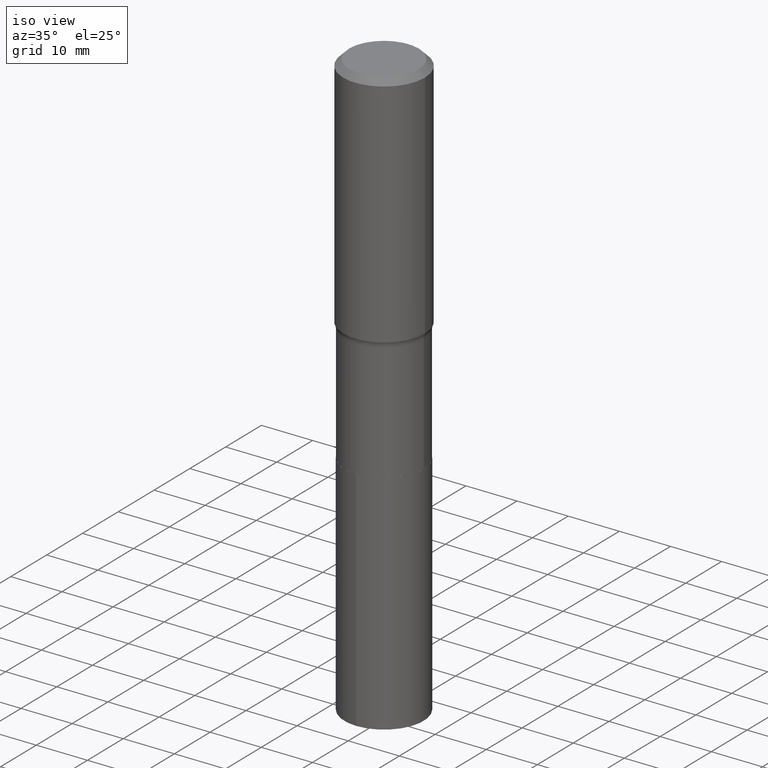
[diagram: clean part render]
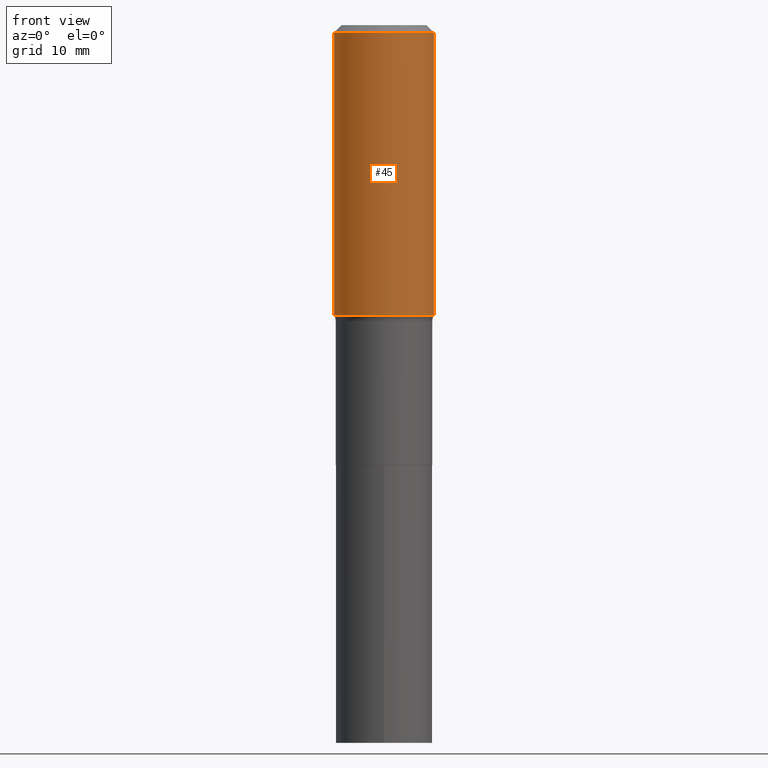
[diagram: tour spotlight — one face highlighted and labeled with its STEP entity id]
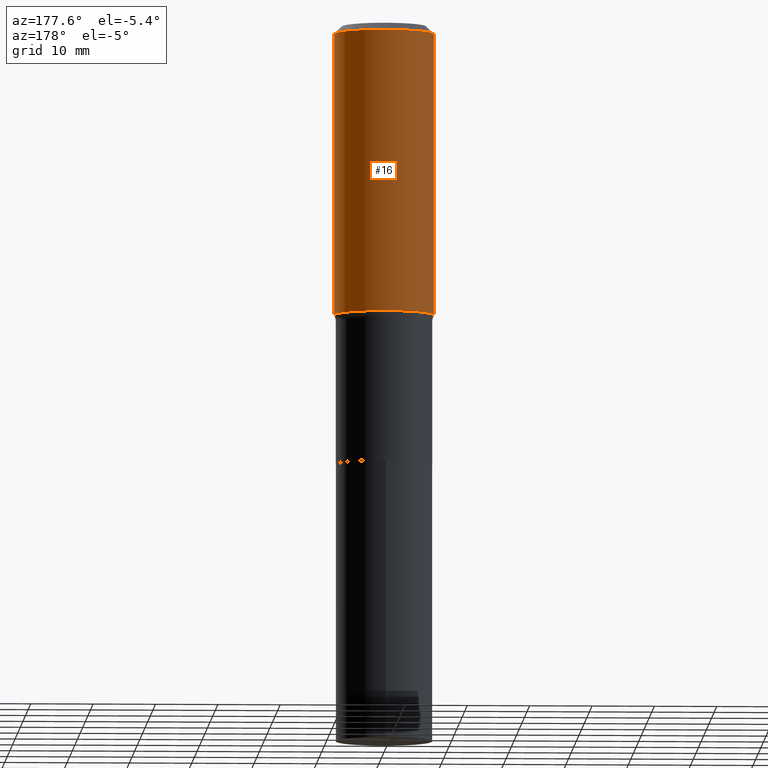
[diagram: tour spotlight — one face highlighted and labeled with its STEP entity id]
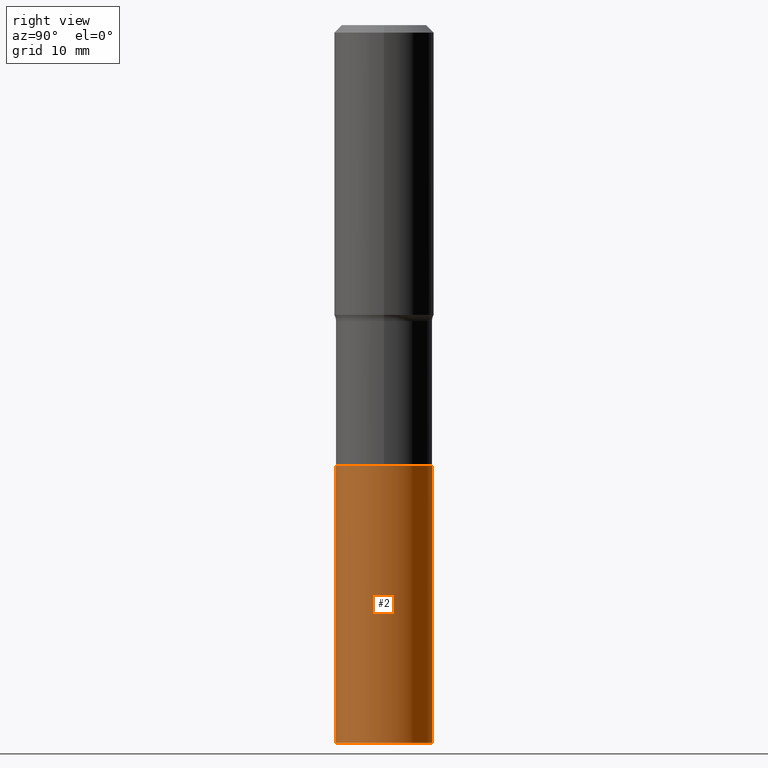
[diagram: tour spotlight — one face highlighted and labeled with its STEP entity id]
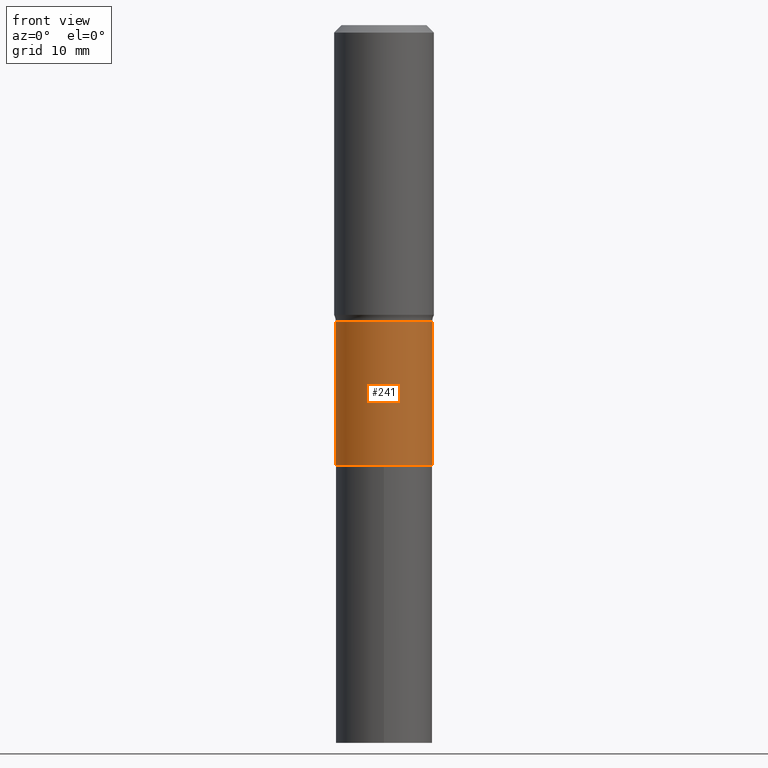
[diagram: tour spotlight — one face highlighted and labeled with its STEP entity id]
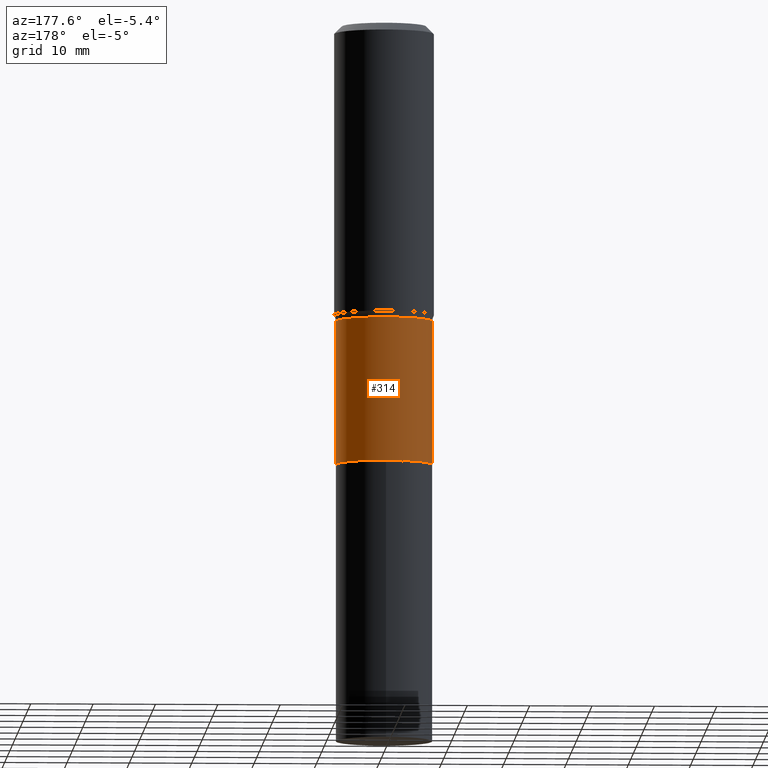
[diagram: tour spotlight — one face highlighted and labeled with its STEP entity id]
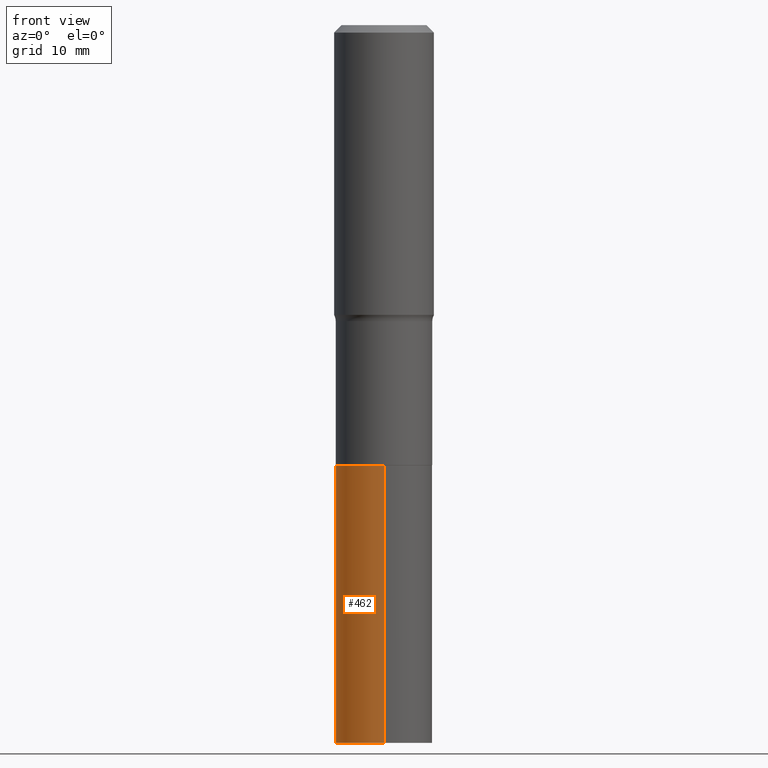
[diagram: tour spotlight — one face highlighted and labeled with its STEP entity id]
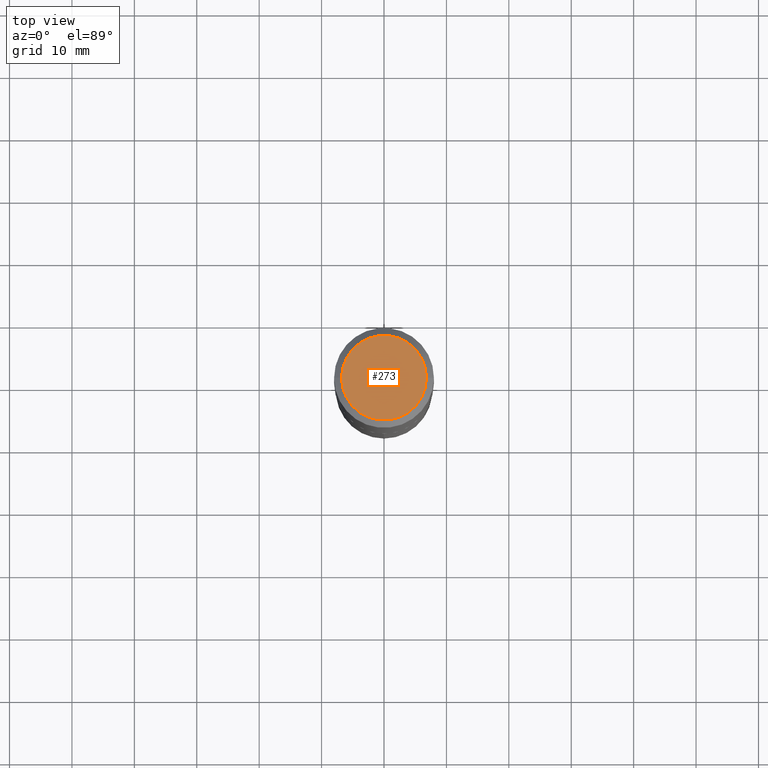
[diagram: tour spotlight — one face highlighted and labeled with its STEP entity id]
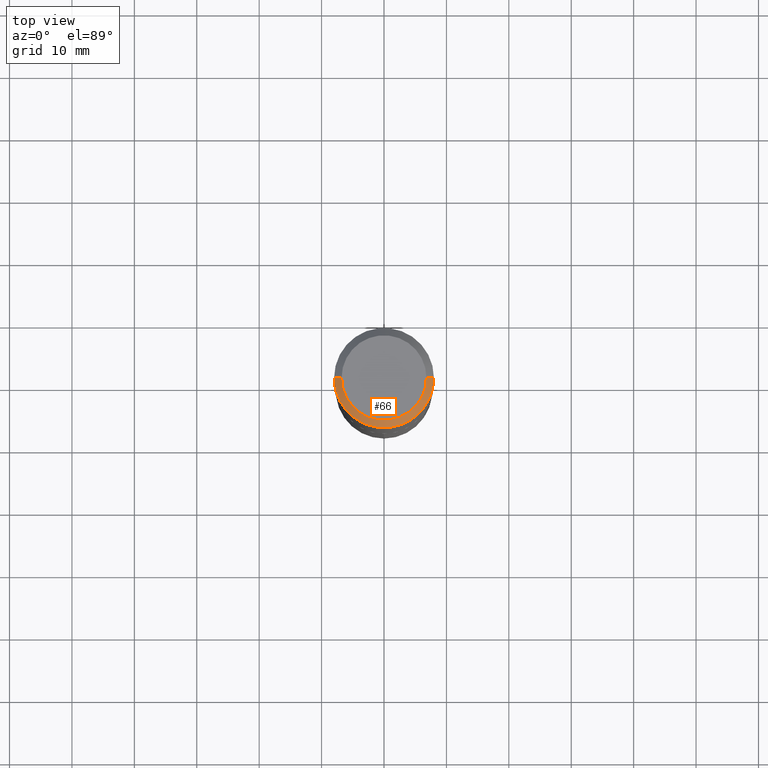
[diagram: tour spotlight — one face highlighted and labeled with its STEP entity id]
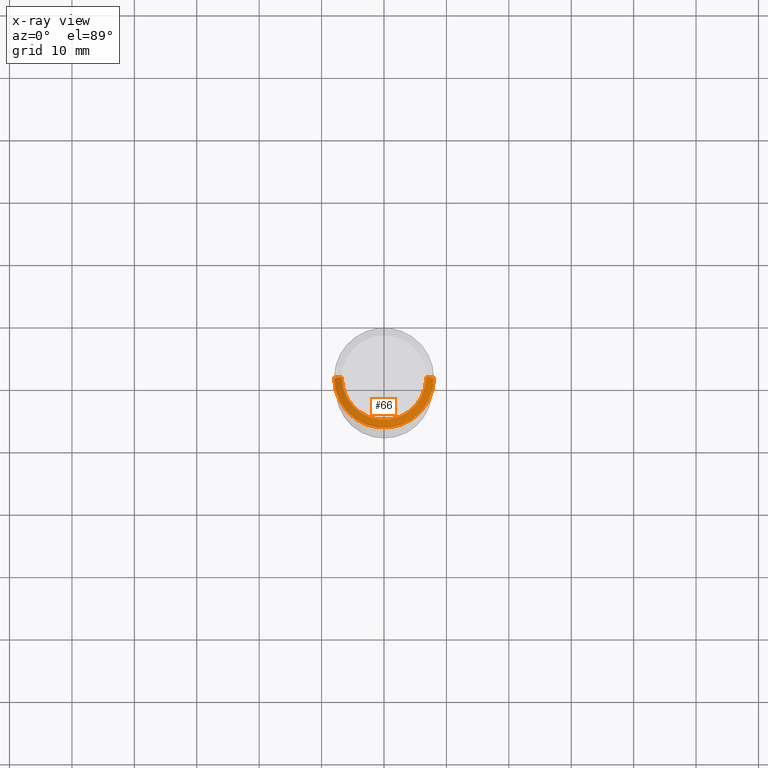
[diagram: x-ray of the same camera — body ghosted, this tour face saturated]
A machine part: a face-by-face anatomy tour. The part has 16 B-rep faces; the first image is the clean iso view, then the 8 largest visible faces are spotlighted one at a time (largest first), each with its STEP entity span.

Face 1 — front view, entity #45. In plain terms, the highlighted cylindrical surface (partial cylindrical patch) has radius 7.9997 mm, axis along (-0, 0, 1).
Definition (entity closure, byte-faithful):
#11 = ORIENTED_EDGE ( 'NONE', *, *, #383, .F. ) ;
#14 = DIRECTION ( 'NONE',  ( -2.445468806185136597E-29, 3.491481338843145583E-15, 1.000000000000000000 ) ) ;
#21 = FACE_OUTER_BOUND ( 'NONE', #113, .T. ) ;
#30 = CIRCLE ( 'NONE', #97, 0.3149500000000001743 ) ;
#34 = LINE ( 'NONE', #140, #139 ) ;
#45 = ADVANCED_FACE ( 'NONE', ( #21 ), #115, .T. ) ;
#55 = ORIENTED_EDGE ( 'NONE', *, *, #147, .F. ) ;
#67 = VERTEX_POINT ( 'NONE', #117 ) ;
#81 = AXIS2_PLACEMENT_3D ( 'NONE', #154, #152, #448 ) ;
#97 = AXIS2_PLACEMENT_3D ( 'NONE', #110, #216, #400 ) ;
#110 = CARTESIAN_POINT ( 'NONE',  ( 4.470370097151335704E-29, -6.382503727894485274E-15, -1.828021721579425440 ) ) ;
#113 = EDGE_LOOP ( 'NONE', ( #11, #125, #353, #55 ) ) ;
#115 = CYLINDRICAL_SURFACE ( 'NONE', #81, 0.3149500000000000632 ) ;
#117 = CARTESIAN_POINT ( 'NONE',  ( 0.3149500000000000077, -2.364230402487588149E-15, -0.04724250000000029120 ) ) ;
#125 = ORIENTED_EDGE ( 'NONE', *, *, #399, .T. ) ;
#139 = VECTOR ( 'NONE', #184, 39.37007874015748143 ) ;
#140 = CARTESIAN_POINT ( 'NONE',  ( -0.3149500000000000632, 2.237854346276435985E-15, -1.549218606675782956E-29 ) ) ;
#144 = CIRCLE ( 'NONE', #309, 0.3149500000000000077 ) ;
#147 = EDGE_CURVE ( 'NONE', #296, #67, #144, .T. ) ;
#152 = DIRECTION ( 'NONE',  ( -2.445468806185136597E-29, 3.491481338843145583E-15, 1.000000000000000000 ) ) ;
#154 = CARTESIAN_POINT ( 'NONE',  ( 0.000000000000000000, 0.000000000000000000, 0.000000000000000000 ) ) ;
#162 = VERTEX_POINT ( 'NONE', #394 ) ;
#172 = CARTESIAN_POINT ( 'NONE',  ( 0.3149500000000000632, -2.199284095337290265E-15, 1.535751875536930410E-29 ) ) ;
#179 = DIRECTION ( 'NONE',  ( -2.445468806185136877E-29, 3.491481338843145188E-15, 1.000000000000000000 ) ) ;
#184 = DIRECTION ( 'NONE',  ( -2.445468806185136877E-29, 3.491481338843145188E-15, 1.000000000000000000 ) ) ;
#187 = CARTESIAN_POINT ( 'NONE',  ( 1.155300600762020273E-30, -1.649463071502983032E-16, -0.04724250000000029120 ) ) ;
#216 = DIRECTION ( 'NONE',  ( -2.445468806185136597E-29, 3.491481338843145583E-15, 1.000000000000000000 ) ) ;
#233 = VERTEX_POINT ( 'NONE', #456 ) ;
#295 = CARTESIAN_POINT ( 'NONE',  ( -0.3149500000000000077, -1.035870671245955397E-15, -0.04724250000000029120 ) ) ;
#296 = VERTEX_POINT ( 'NONE', #295 ) ;
#309 = AXIS2_PLACEMENT_3D ( 'NONE', #187, #14, #428 ) ;
#325 = VECTOR ( 'NONE', #179, 39.37007874015748143 ) ;
#353 = ORIENTED_EDGE ( 'NONE', *, *, #407, .T. ) ;
#383 = EDGE_CURVE ( 'NONE', #233, #296, #34, .T. ) ;
#394 = CARTESIAN_POINT ( 'NONE',  ( 0.3149500000000001743, -8.581787823231775145E-15, -1.828021721579425440 ) ) ;
#399 = EDGE_CURVE ( 'NONE', #233, #162, #30, .T. ) ;
#400 = DIRECTION ( 'NONE',  ( 1.000000000000000000, -6.982962677686265922E-15, 0.000000000000000000 ) ) ;
#407 = EDGE_CURVE ( 'NONE', #162, #67, #435, .T. ) ;
#428 = DIRECTION ( 'NONE',  ( 1.000000000000000000, -6.982962677686266711E-15, 0.000000000000000000 ) ) ;
#435 = LINE ( 'NONE', #172, #325 ) ;
#448 = DIRECTION ( 'NONE',  ( 1.000000000000000000, -6.982962677686266711E-15, 4.876176775795936353E-29 ) ) ;
#456 = CARTESIAN_POINT ( 'NONE',  ( -0.3149500000000001743, -4.144649381618048500E-15, -1.828021721579425440 ) ) ;

Face 2 — auxiliary view, entity #16. In plain terms, the highlighted cylindrical surface (partial cylindrical patch) has radius 7.9997 mm, axis along (-0, 0, 1).
Definition (entity closure, byte-faithful):
#3 = CARTESIAN_POINT ( 'NONE',  ( 1.155300600762020273E-30, -1.649463071502983032E-16, -0.04724250000000029120 ) ) ;
#16 = ADVANCED_FACE ( 'NONE', ( #119 ), #304, .T. ) ;
#22 = DIRECTION ( 'NONE',  ( -2.445468806185136597E-29, 3.491481338843145583E-15, 1.000000000000000000 ) ) ;
#34 = LINE ( 'NONE', #140, #139 ) ;
#36 = DIRECTION ( 'NONE',  ( -2.445468806185136597E-29, 3.491481338843145583E-15, 1.000000000000000000 ) ) ;
#67 = VERTEX_POINT ( 'NONE', #117 ) ;
#88 = CARTESIAN_POINT ( 'NONE',  ( 0.000000000000000000, 0.000000000000000000, 0.000000000000000000 ) ) ;
#117 = CARTESIAN_POINT ( 'NONE',  ( 0.3149500000000000077, -2.364230402487588149E-15, -0.04724250000000029120 ) ) ;
#119 = FACE_OUTER_BOUND ( 'NONE', #128, .T. ) ;
#120 = DIRECTION ( 'NONE',  ( -2.445468806185136597E-29, 3.491481338843145583E-15, 1.000000000000000000 ) ) ;
#123 = EDGE_CURVE ( 'NONE', #162, #233, #200, .T. ) ;
#128 = EDGE_LOOP ( 'NONE', ( #244, #161, #460, #191 ) ) ;
#139 = VECTOR ( 'NONE', #184, 39.37007874015748143 ) ;
#140 = CARTESIAN_POINT ( 'NONE',  ( -0.3149500000000000632, 2.237854346276435985E-15, -1.549218606675782956E-29 ) ) ;
#158 = DIRECTION ( 'NONE',  ( 1.000000000000000000, -6.982962677686265922E-15, 0.000000000000000000 ) ) ;
#161 = ORIENTED_EDGE ( 'NONE', *, *, #383, .T. ) ;
#162 = VERTEX_POINT ( 'NONE', #394 ) ;
#172 = CARTESIAN_POINT ( 'NONE',  ( 0.3149500000000000632, -2.199284095337290265E-15, 1.535751875536930410E-29 ) ) ;
#179 = DIRECTION ( 'NONE',  ( -2.445468806185136877E-29, 3.491481338843145188E-15, 1.000000000000000000 ) ) ;
#184 = DIRECTION ( 'NONE',  ( -2.445468806185136877E-29, 3.491481338843145188E-15, 1.000000000000000000 ) ) ;
#191 = ORIENTED_EDGE ( 'NONE', *, *, #407, .F. ) ;
#200 = CIRCLE ( 'NONE', #290, 0.3149500000000001743 ) ;
#220 = DIRECTION ( 'NONE',  ( 1.000000000000000000, -6.982962677686266711E-15, 0.000000000000000000 ) ) ;
#233 = VERTEX_POINT ( 'NONE', #456 ) ;
#240 = CIRCLE ( 'NONE', #286, 0.3149500000000000077 ) ;
#244 = ORIENTED_EDGE ( 'NONE', *, *, #123, .T. ) ;
#283 = AXIS2_PLACEMENT_3D ( 'NONE', #88, #22, #406 ) ;
#286 = AXIS2_PLACEMENT_3D ( 'NONE', #3, #36, #220 ) ;
#290 = AXIS2_PLACEMENT_3D ( 'NONE', #453, #120, #158 ) ;
#295 = CARTESIAN_POINT ( 'NONE',  ( -0.3149500000000000077, -1.035870671245955397E-15, -0.04724250000000029120 ) ) ;
#296 = VERTEX_POINT ( 'NONE', #295 ) ;
#304 = CYLINDRICAL_SURFACE ( 'NONE', #283, 0.3149500000000000632 ) ;
#311 = EDGE_CURVE ( 'NONE', #67, #296, #240, .T. ) ;
#325 = VECTOR ( 'NONE', #179, 39.37007874015748143 ) ;
#383 = EDGE_CURVE ( 'NONE', #233, #296, #34, .T. ) ;
#394 = CARTESIAN_POINT ( 'NONE',  ( 0.3149500000000001743, -8.581787823231775145E-15, -1.828021721579425440 ) ) ;
#406 = DIRECTION ( 'NONE',  ( 1.000000000000000000, -6.982962677686266711E-15, 4.876176775795936353E-29 ) ) ;
#407 = EDGE_CURVE ( 'NONE', #162, #67, #435, .T. ) ;
#435 = LINE ( 'NONE', #172, #325 ) ;
#453 = CARTESIAN_POINT ( 'NONE',  ( 4.470370097151335704E-29, -6.382503727894485274E-15, -1.828021721579425440 ) ) ;
#456 = CARTESIAN_POINT ( 'NONE',  ( -0.3149500000000001743, -4.144649381618048500E-15, -1.828021721579425440 ) ) ;
#460 = ORIENTED_EDGE ( 'NONE', *, *, #311, .F. ) ;

Face 3 — right view, entity #2. In plain terms, the highlighted cylindrical surface (partial cylindrical patch) has radius 7.7394 mm, axis along (-0, 0, 1).
Definition (entity closure, byte-faithful):
#1 = AXIS2_PLACEMENT_3D ( 'NONE', #260, #338, #149 ) ;
#2 = ADVANCED_FACE ( 'NONE', ( #265 ), #226, .T. ) ;
#17 = EDGE_LOOP ( 'NONE', ( #438, #347, #238, #269 ) ) ;
#20 = VECTOR ( 'NONE', #346, 39.37007874015748143 ) ;
#41 = LINE ( 'NONE', #106, #305 ) ;
#51 = EDGE_CURVE ( 'NONE', #64, #212, #145, .T. ) ;
#62 = CARTESIAN_POINT ( 'NONE',  ( 2.165023715861136289E-15, 0.3046999999999903119, -2.775600000000000733 ) ) ;
#64 = VERTEX_POINT ( 'NONE', #90 ) ;
#77 = AXIS2_PLACEMENT_3D ( 'NONE', #326, #281, #322 ) ;
#90 = CARTESIAN_POINT ( 'NONE',  ( -2.127708727890894629E-15, -0.3047000000000158471, -4.527599999999999625 ) ) ;
#106 = CARTESIAN_POINT ( 'NONE',  ( -2.127708727890937622E-15, -0.3047000000000097408, -2.775599999999998513 ) ) ;
#118 = CIRCLE ( 'NONE', #77, 0.3047000000000000264 ) ;
#145 = CIRCLE ( 'NONE', #395, 0.3047000000000000264 ) ;
#149 = DIRECTION ( 'NONE',  ( -6.982962677686265922E-15, -1.000000000000000000, 3.586278954596997549E-15 ) ) ;
#207 = VERTEX_POINT ( 'NONE', #242 ) ;
#212 = VERTEX_POINT ( 'NONE', #417 ) ;
#226 = CYLINDRICAL_SURFACE ( 'NONE', #1, 0.3047000000000000264 ) ;
#238 = ORIENTED_EDGE ( 'NONE', *, *, #416, .F. ) ;
#242 = CARTESIAN_POINT ( 'NONE',  ( -2.127708727890937622E-15, -0.3047000000000097408, -2.775599999999998513 ) ) ;
#260 = CARTESIAN_POINT ( 'NONE',  ( 6.787643218447464969E-29, -9.690955604093032420E-15, -2.775599999999999845 ) ) ;
#261 = EDGE_CURVE ( 'NONE', #212, #277, #419, .T. ) ;
#265 = FACE_OUTER_BOUND ( 'NONE', #17, .T. ) ;
#269 = ORIENTED_EDGE ( 'NONE', *, *, #364, .F. ) ;
#277 = VERTEX_POINT ( 'NONE', #62 ) ;
#281 = DIRECTION ( 'NONE',  ( -2.445278473836501183E-29, 3.491753905599435756E-15, 1.000000000000000000 ) ) ;
#287 = DIRECTION ( 'NONE',  ( -2.445278473836501183E-29, 3.491753905599435756E-15, 1.000000000000000000 ) ) ;
#305 = VECTOR ( 'NONE', #287, 39.37007874015748143 ) ;
#322 = DIRECTION ( 'NONE',  ( -6.982962677686265922E-15, -1.000000000000000000, 3.586278954596997549E-15 ) ) ;
#326 = CARTESIAN_POINT ( 'NONE',  ( 6.787643218447464969E-29, -9.690955604093032420E-15, -2.775599999999999845 ) ) ;
#338 = DIRECTION ( 'NONE',  ( -2.445278473836501183E-29, 3.491753905599435756E-15, 1.000000000000000000 ) ) ;
#346 = DIRECTION ( 'NONE',  ( -2.445278473836501183E-29, 3.491753905599435756E-15, 1.000000000000000000 ) ) ;
#347 = ORIENTED_EDGE ( 'NONE', *, *, #261, .T. ) ;
#364 = EDGE_CURVE ( 'NONE', #64, #207, #41, .T. ) ;
#378 = DIRECTION ( 'NONE',  ( -6.982962677686265922E-15, -1.000000000000000000, 3.586278954596997549E-15 ) ) ;
#395 = AXIS2_PLACEMENT_3D ( 'NONE', #409, #445, #378 ) ;
#409 = CARTESIAN_POINT ( 'NONE',  ( 1.107177110460901568E-28, -1.580850844670324897E-14, -4.527600000000000513 ) ) ;
#416 = EDGE_CURVE ( 'NONE', #207, #277, #118, .T. ) ;
#417 = CARTESIAN_POINT ( 'NONE',  ( 2.165023715861114595E-15, 0.3046999999999842057, -4.527600000000001401 ) ) ;
#419 = LINE ( 'NONE', #420, #20 ) ;
#420 = CARTESIAN_POINT ( 'NONE',  ( 2.165023715861093296E-15, 0.3046999999999903119, -2.775600000000000733 ) ) ;
#438 = ORIENTED_EDGE ( 'NONE', *, *, #51, .T. ) ;
#445 = DIRECTION ( 'NONE',  ( -2.445278473836501183E-29, 3.491753905599435756E-15, 1.000000000000000000 ) ) ;

Face 4 — front view, entity #241. In plain terms, the highlighted cylindrical surface (partial cylindrical patch) has radius 7.7394 mm, axis along (-0, 0, 1).
Definition (entity closure, byte-faithful):
#7 = ORIENTED_EDGE ( 'NONE', *, *, #32, .F. ) ;
#27 = CYLINDRICAL_SURFACE ( 'NONE', #424, 0.3046999999999999709 ) ;
#32 = EDGE_CURVE ( 'NONE', #134, #194, #415, .T. ) ;
#39 = DIRECTION ( 'NONE',  ( -2.445468806185136597E-29, 3.491481338843145583E-15, 1.000000000000000000 ) ) ;
#56 = LINE ( 'NONE', #390, #380 ) ;
#78 = DIRECTION ( 'NONE',  ( -2.445468806185136597E-29, 3.491481338843145583E-15, 1.000000000000000000 ) ) ;
#96 = ORIENTED_EDGE ( 'NONE', *, *, #249, .T. ) ;
#109 = DIRECTION ( 'NONE',  ( 1.000000000000000000, -6.982962677686267499E-15, 0.000000000000000000 ) ) ;
#122 = CIRCLE ( 'NONE', #178, 0.3046999999999999154 ) ;
#132 = CIRCLE ( 'NONE', #389, 0.3047000000000000264 ) ;
#134 = VERTEX_POINT ( 'NONE', #310 ) ;
#135 = DIRECTION ( 'NONE',  ( 1.000000000000000000, -6.982962677686265133E-15, 0.000000000000000000 ) ) ;
#166 = ORIENTED_EDGE ( 'NONE', *, *, #423, .T. ) ;
#178 = AXIS2_PLACEMENT_3D ( 'NONE', #403, #78, #109 ) ;
#194 = VERTEX_POINT ( 'NONE', #267 ) ;
#197 = CARTESIAN_POINT ( 'NONE',  ( -0.3046999999999999709, 2.165023715861025059E-15, -1.498799522000669571E-29 ) ) ;
#202 = DIRECTION ( 'NONE',  ( -2.445468806185136877E-29, 3.491481338843145188E-15, 1.000000000000000000 ) ) ;
#203 = FACE_OUTER_BOUND ( 'NONE', #294, .T. ) ;
#231 = DIRECTION ( 'NONE',  ( -2.445468806185136877E-29, 3.491481338843145188E-15, 1.000000000000000000 ) ) ;
#241 = ADVANCED_FACE ( 'NONE', ( #203 ), #27, .T. ) ;
#247 = VERTEX_POINT ( 'NONE', #384 ) ;
#249 = EDGE_CURVE ( 'NONE', #247, #274, #56, .T. ) ;
#254 = CARTESIAN_POINT ( 'NONE',  ( 6.786420484044372168E-29, -9.689209863423613283E-15, -2.775099999999999678 ) ) ;
#267 = CARTESIAN_POINT ( 'NONE',  ( -0.3046999999999999154, -5.939228193794742419E-15, -1.867199999999999749 ) ) ;
#274 = VERTEX_POINT ( 'NONE', #392 ) ;
#278 = DIRECTION ( 'NONE',  ( 1.000000000000000000, -6.982962677686265922E-15, 4.876176775795935232E-29 ) ) ;
#293 = VECTOR ( 'NONE', #231, 39.37007874015748143 ) ;
#294 = EDGE_LOOP ( 'NONE', ( #7, #166, #96, #429 ) ) ;
#310 = CARTESIAN_POINT ( 'NONE',  ( -0.3047000000000000264, -5.939228193794740841E-15, -2.775099999999999678 ) ) ;
#315 = CARTESIAN_POINT ( 'NONE',  ( 0.000000000000000000, 0.000000000000000000, 0.000000000000000000 ) ) ;
#349 = DIRECTION ( 'NONE',  ( -2.445468806185136597E-29, 3.491481338843145583E-15, 1.000000000000000000 ) ) ;
#380 = VECTOR ( 'NONE', #202, 39.37007874015748143 ) ;
#384 = CARTESIAN_POINT ( 'NONE',  ( 0.3047000000000000264, -1.181691859131461756E-14, -2.775099999999999678 ) ) ;
#389 = AXIS2_PLACEMENT_3D ( 'NONE', #254, #39, #135 ) ;
#390 = CARTESIAN_POINT ( 'NONE',  ( 0.3046999999999999709, -2.127708727891005069E-15, 1.485771063585021258E-29 ) ) ;
#392 = CARTESIAN_POINT ( 'NONE',  ( 0.3046999999999999154, -8.647002683778925954E-15, -1.867199999999999749 ) ) ;
#403 = CARTESIAN_POINT ( 'NONE',  ( 4.566179354908886667E-29, -6.519293955887920885E-15, -1.867199999999999749 ) ) ;
#415 = LINE ( 'NONE', #197, #293 ) ;
#423 = EDGE_CURVE ( 'NONE', #134, #247, #132, .T. ) ;
#424 = AXIS2_PLACEMENT_3D ( 'NONE', #315, #349, #278 ) ;
#429 = ORIENTED_EDGE ( 'NONE', *, *, #444, .F. ) ;
#444 = EDGE_CURVE ( 'NONE', #194, #274, #122, .T. ) ;

Face 5 — auxiliary view, entity #314. In plain terms, the highlighted cylindrical surface (partial cylindrical patch) has radius 7.7394 mm, axis along (-0, 0, 1).
Definition (entity closure, byte-faithful):
#23 = AXIS2_PLACEMENT_3D ( 'NONE', #465, #167, #363 ) ;
#24 = DIRECTION ( 'NONE',  ( 1.000000000000000000, -6.982962677686267499E-15, 0.000000000000000000 ) ) ;
#32 = EDGE_CURVE ( 'NONE', #134, #194, #415, .T. ) ;
#56 = LINE ( 'NONE', #390, #380 ) ;
#57 = CARTESIAN_POINT ( 'NONE',  ( 4.566179354908886667E-29, -6.519293955887920885E-15, -1.867199999999999749 ) ) ;
#61 = ORIENTED_EDGE ( 'NONE', *, *, #249, .F. ) ;
#68 = CIRCLE ( 'NONE', #23, 0.3047000000000000264 ) ;
#71 = ORIENTED_EDGE ( 'NONE', *, *, #288, .T. ) ;
#103 = DIRECTION ( 'NONE',  ( -2.445468806185136597E-29, 3.491481338843145583E-15, 1.000000000000000000 ) ) ;
#127 = AXIS2_PLACEMENT_3D ( 'NONE', #57, #235, #24 ) ;
#134 = VERTEX_POINT ( 'NONE', #310 ) ;
#167 = DIRECTION ( 'NONE',  ( -2.445468806185136597E-29, 3.491481338843145583E-15, 1.000000000000000000 ) ) ;
#181 = EDGE_CURVE ( 'NONE', #274, #194, #302, .T. ) ;
#194 = VERTEX_POINT ( 'NONE', #267 ) ;
#197 = CARTESIAN_POINT ( 'NONE',  ( -0.3046999999999999709, 2.165023715861025059E-15, -1.498799522000669571E-29 ) ) ;
#202 = DIRECTION ( 'NONE',  ( -2.445468806185136877E-29, 3.491481338843145188E-15, 1.000000000000000000 ) ) ;
#219 = CARTESIAN_POINT ( 'NONE',  ( 0.000000000000000000, 0.000000000000000000, 0.000000000000000000 ) ) ;
#231 = DIRECTION ( 'NONE',  ( -2.445468806185136877E-29, 3.491481338843145188E-15, 1.000000000000000000 ) ) ;
#235 = DIRECTION ( 'NONE',  ( -2.445468806185136597E-29, 3.491481338843145583E-15, 1.000000000000000000 ) ) ;
#247 = VERTEX_POINT ( 'NONE', #384 ) ;
#249 = EDGE_CURVE ( 'NONE', #247, #274, #56, .T. ) ;
#262 = AXIS2_PLACEMENT_3D ( 'NONE', #219, #103, #430 ) ;
#267 = CARTESIAN_POINT ( 'NONE',  ( -0.3046999999999999154, -5.939228193794742419E-15, -1.867199999999999749 ) ) ;
#274 = VERTEX_POINT ( 'NONE', #392 ) ;
#288 = EDGE_CURVE ( 'NONE', #247, #134, #68, .T. ) ;
#293 = VECTOR ( 'NONE', #231, 39.37007874015748143 ) ;
#302 = CIRCLE ( 'NONE', #127, 0.3046999999999999154 ) ;
#310 = CARTESIAN_POINT ( 'NONE',  ( -0.3047000000000000264, -5.939228193794740841E-15, -2.775099999999999678 ) ) ;
#314 = ADVANCED_FACE ( 'NONE', ( #324 ), #366, .T. ) ;
#324 = FACE_OUTER_BOUND ( 'NONE', #379, .T. ) ;
#358 = ORIENTED_EDGE ( 'NONE', *, *, #32, .T. ) ;
#361 = ORIENTED_EDGE ( 'NONE', *, *, #181, .F. ) ;
#363 = DIRECTION ( 'NONE',  ( 1.000000000000000000, -6.982962677686265133E-15, 0.000000000000000000 ) ) ;
#366 = CYLINDRICAL_SURFACE ( 'NONE', #262, 0.3046999999999999709 ) ;
#379 = EDGE_LOOP ( 'NONE', ( #71, #358, #361, #61 ) ) ;
#380 = VECTOR ( 'NONE', #202, 39.37007874015748143 ) ;
#384 = CARTESIAN_POINT ( 'NONE',  ( 0.3047000000000000264, -1.181691859131461756E-14, -2.775099999999999678 ) ) ;
#390 = CARTESIAN_POINT ( 'NONE',  ( 0.3046999999999999709, -2.127708727891005069E-15, 1.485771063585021258E-29 ) ) ;
#392 = CARTESIAN_POINT ( 'NONE',  ( 0.3046999999999999154, -8.647002683778925954E-15, -1.867199999999999749 ) ) ;
#415 = LINE ( 'NONE', #197, #293 ) ;
#430 = DIRECTION ( 'NONE',  ( 1.000000000000000000, -6.982962677686265922E-15, 4.876176775795935232E-29 ) ) ;
#465 = CARTESIAN_POINT ( 'NONE',  ( 6.786420484044372168E-29, -9.689209863423613283E-15, -2.775099999999999678 ) ) ;

Face 6 — front view, entity #462. In plain terms, the highlighted cylindrical surface (partial cylindrical patch) has radius 7.7394 mm, axis along (-0, 0, 1).
Definition (entity closure, byte-faithful):
#19 = DIRECTION ( 'NONE',  ( -2.445278473836501183E-29, 3.491753905599435756E-15, 1.000000000000000000 ) ) ;
#20 = VECTOR ( 'NONE', #346, 39.37007874015748143 ) ;
#28 = ORIENTED_EDGE ( 'NONE', *, *, #261, .F. ) ;
#37 = EDGE_CURVE ( 'NONE', #212, #64, #431, .T. ) ;
#41 = LINE ( 'NONE', #106, #305 ) ;
#62 = CARTESIAN_POINT ( 'NONE',  ( 2.165023715861136289E-15, 0.3046999999999903119, -2.775600000000000733 ) ) ;
#64 = VERTEX_POINT ( 'NONE', #90 ) ;
#69 = DIRECTION ( 'NONE',  ( -6.982962677686265922E-15, -1.000000000000000000, 3.586278954596997549E-15 ) ) ;
#84 = CARTESIAN_POINT ( 'NONE',  ( 1.107177110460901568E-28, -1.580850844670324897E-14, -4.527600000000000513 ) ) ;
#90 = CARTESIAN_POINT ( 'NONE',  ( -2.127708727890894629E-15, -0.3047000000000158471, -4.527599999999999625 ) ) ;
#106 = CARTESIAN_POINT ( 'NONE',  ( -2.127708727890937622E-15, -0.3047000000000097408, -2.775599999999998513 ) ) ;
#131 = EDGE_CURVE ( 'NONE', #277, #207, #386, .T. ) ;
#182 = AXIS2_PLACEMENT_3D ( 'NONE', #266, #199, #222 ) ;
#199 = DIRECTION ( 'NONE',  ( -2.445278473836501183E-29, 3.491753905599435756E-15, 1.000000000000000000 ) ) ;
#207 = VERTEX_POINT ( 'NONE', #242 ) ;
#212 = VERTEX_POINT ( 'NONE', #417 ) ;
#222 = DIRECTION ( 'NONE',  ( -6.982962677686265922E-15, -1.000000000000000000, 3.586278954596997549E-15 ) ) ;
#242 = CARTESIAN_POINT ( 'NONE',  ( -2.127708727890937622E-15, -0.3047000000000097408, -2.775599999999998513 ) ) ;
#261 = EDGE_CURVE ( 'NONE', #212, #277, #419, .T. ) ;
#266 = CARTESIAN_POINT ( 'NONE',  ( 6.787643218447464969E-29, -9.690955604093032420E-15, -2.775599999999999845 ) ) ;
#277 = VERTEX_POINT ( 'NONE', #62 ) ;
#287 = DIRECTION ( 'NONE',  ( -2.445278473836501183E-29, 3.491753905599435756E-15, 1.000000000000000000 ) ) ;
#289 = FACE_OUTER_BOUND ( 'NONE', #457, .T. ) ;
#301 = DIRECTION ( 'NONE',  ( -6.982962677686265922E-15, -1.000000000000000000, 3.586278954596997549E-15 ) ) ;
#305 = VECTOR ( 'NONE', #287, 39.37007874015748143 ) ;
#321 = AXIS2_PLACEMENT_3D ( 'NONE', #84, #19, #301 ) ;
#342 = ORIENTED_EDGE ( 'NONE', *, *, #364, .T. ) ;
#344 = ORIENTED_EDGE ( 'NONE', *, *, #37, .T. ) ;
#346 = DIRECTION ( 'NONE',  ( -2.445278473836501183E-29, 3.491753905599435756E-15, 1.000000000000000000 ) ) ;
#360 = AXIS2_PLACEMENT_3D ( 'NONE', #436, #365, #69 ) ;
#364 = EDGE_CURVE ( 'NONE', #64, #207, #41, .T. ) ;
#365 = DIRECTION ( 'NONE',  ( -2.445278473836501183E-29, 3.491753905599435756E-15, 1.000000000000000000 ) ) ;
#386 = CIRCLE ( 'NONE', #182, 0.3047000000000000264 ) ;
#396 = CYLINDRICAL_SURFACE ( 'NONE', #360, 0.3047000000000000264 ) ;
#417 = CARTESIAN_POINT ( 'NONE',  ( 2.165023715861114595E-15, 0.3046999999999842057, -4.527600000000001401 ) ) ;
#419 = LINE ( 'NONE', #420, #20 ) ;
#420 = CARTESIAN_POINT ( 'NONE',  ( 2.165023715861093296E-15, 0.3046999999999903119, -2.775600000000000733 ) ) ;
#422 = ORIENTED_EDGE ( 'NONE', *, *, #131, .F. ) ;
#431 = CIRCLE ( 'NONE', #321, 0.3047000000000000264 ) ;
#436 = CARTESIAN_POINT ( 'NONE',  ( 6.787643218447464969E-29, -9.690955604093032420E-15, -2.775599999999999845 ) ) ;
#457 = EDGE_LOOP ( 'NONE', ( #28, #344, #342, #422 ) ) ;
#462 = ADVANCED_FACE ( 'NONE', ( #289 ), #396, .T. ) ;

Face 7 — top view, entity #273. In plain terms, the highlighted planar face has unit normal (0, -0, -1).
Definition (entity closure, byte-faithful):
#8 = DIRECTION ( 'NONE',  ( -2.445468806185136597E-29, 3.491481338843145583E-15, 1.000000000000000000 ) ) ;
#29 = EDGE_LOOP ( 'NONE', ( #368, #47 ) ) ;
#47 = ORIENTED_EDGE ( 'NONE', *, *, #466, .T. ) ;
#98 = DIRECTION ( 'NONE',  ( 1.000000000000000000, -6.982962677686267499E-15, 4.876236838442819371E-29 ) ) ;
#100 = DIRECTION ( 'NONE',  ( -2.445468806185136597E-29, 3.491481338843145583E-15, 1.000000000000000000 ) ) ;
#126 = FACE_OUTER_BOUND ( 'NONE', #29, .T. ) ;
#136 = AXIS2_PLACEMENT_3D ( 'NONE', #320, #100, #98 ) ;
#137 = CARTESIAN_POINT ( 'NONE',  ( -1.001697619218022568E-46, 1.430158722866391086E-32, 4.096137381448112218E-18 ) ) ;
#151 = EDGE_CURVE ( 'NONE', #426, #280, #375, .T. ) ;
#180 = CARTESIAN_POINT ( 'NONE',  ( -0.2677074999999999871, 1.951864634611843833E-15, 4.096137381434750116E-18 ) ) ;
#206 = PLANE ( 'NONE',  #268 ) ;
#208 = CARTESIAN_POINT ( 'NONE',  ( 0.2677074999999999871, -2.081133459643432233E-15, 4.096137381461924987E-18 ) ) ;
#214 = DIRECTION ( 'NONE',  ( 1.000000000000000000, -6.982962677686267499E-15, 4.876236838442819371E-29 ) ) ;
#268 = AXIS2_PLACEMENT_3D ( 'NONE', #317, #276, #425 ) ;
#273 = ADVANCED_FACE ( 'NONE', ( #126 ), #206, .F. ) ;
#276 = DIRECTION ( 'NONE',  ( 2.438088387897960049E-29, -3.491481338843145188E-15, -1.000000000000000000 ) ) ;
#280 = VERTEX_POINT ( 'NONE', #208 ) ;
#317 = CARTESIAN_POINT ( 'NONE',  ( -5.008488096090112840E-47, 7.150793614331955432E-33, 2.048068690724056109E-18 ) ) ;
#320 = CARTESIAN_POINT ( 'NONE',  ( -1.001697619218022568E-46, 1.430158722866391086E-32, 4.096137381448112218E-18 ) ) ;
#368 = ORIENTED_EDGE ( 'NONE', *, *, #151, .T. ) ;
#375 = CIRCLE ( 'NONE', #136, 0.2677074999999999871 ) ;
#408 = CIRCLE ( 'NONE', #434, 0.2677074999999999871 ) ;
#425 = DIRECTION ( 'NONE',  ( -1.000000000000000000, 6.982962677686265922E-15, -4.876176775795935793E-29 ) ) ;
#426 = VERTEX_POINT ( 'NONE', #180 ) ;
#434 = AXIS2_PLACEMENT_3D ( 'NONE', #137, #8, #214 ) ;
#466 = EDGE_CURVE ( 'NONE', #280, #426, #408, .T. ) ;

Face 8 — top view, entity #66. An x-ray twin of the same camera follows (body ghosted, this face saturated) — the face is partly hidden behind the body. In plain terms, the highlighted conical surface has half-angle 45 deg.
Definition (entity closure, byte-faithful):
#14 = DIRECTION ( 'NONE',  ( -2.445468806185136597E-29, 3.491481338843145583E-15, 1.000000000000000000 ) ) ;
#25 = CARTESIAN_POINT ( 'NONE',  ( 0.3149500000000000077, -2.325660151548442036E-15, -0.04724250000000029120 ) ) ;
#31 = CARTESIAN_POINT ( 'NONE',  ( -0.3149500000000000077, 2.034337788186991592E-15, -0.04724250000000029120 ) ) ;
#66 = ADVANCED_FACE ( 'NONE', ( #307 ), #183, .T. ) ;
#67 = VERTEX_POINT ( 'NONE', #117 ) ;
#87 = DIRECTION ( 'NONE',  ( -1.000000000000000000, 6.982962677686266711E-15, 0.000000000000000000 ) ) ;
#98 = DIRECTION ( 'NONE',  ( 1.000000000000000000, -6.982962677686267499E-15, 4.876236838442819371E-29 ) ) ;
#100 = DIRECTION ( 'NONE',  ( -2.445468806185136597E-29, 3.491481338843145583E-15, 1.000000000000000000 ) ) ;
#107 = ORIENTED_EDGE ( 'NONE', *, *, #156, .T. ) ;
#117 = CARTESIAN_POINT ( 'NONE',  ( 0.3149500000000000077, -2.364230402487588149E-15, -0.04724250000000029120 ) ) ;
#121 = LINE ( 'NONE', #25, #209 ) ;
#136 = AXIS2_PLACEMENT_3D ( 'NONE', #320, #100, #98 ) ;
#144 = CIRCLE ( 'NONE', #309, 0.3149500000000000077 ) ;
#147 = EDGE_CURVE ( 'NONE', #296, #67, #144, .T. ) ;
#151 = EDGE_CURVE ( 'NONE', #426, #280, #375, .T. ) ;
#156 = EDGE_CURVE ( 'NONE', #426, #296, #387, .T. ) ;
#159 = EDGE_CURVE ( 'NONE', #280, #67, #121, .T. ) ;
#160 = DIRECTION ( 'NONE',  ( -0.7071067811865453523, 2.468850131082234184E-15, -0.7071067811865496822 ) ) ;
#180 = CARTESIAN_POINT ( 'NONE',  ( -0.2677074999999999871, 1.951864634611843833E-15, 4.096137381434750116E-18 ) ) ;
#183 = CONICAL_SURFACE ( 'NONE', #446, 0.3149500000000000077, 0.7853981633974452814 ) ;
#187 = CARTESIAN_POINT ( 'NONE',  ( 1.155300600762020273E-30, -1.649463071502983032E-16, -0.04724250000000029120 ) ) ;
#201 = VECTOR ( 'NONE', #160, 39.37007874015748143 ) ;
#208 = CARTESIAN_POINT ( 'NONE',  ( 0.2677074999999999871, -2.081133459643432233E-15, 4.096137381461924987E-18 ) ) ;
#209 = VECTOR ( 'NONE', #272, 39.37007874015748143 ) ;
#243 = ORIENTED_EDGE ( 'NONE', *, *, #151, .F. ) ;
#272 = DIRECTION ( 'NONE',  ( 0.7071067811865453523, -7.319954787623248157E-15, -0.7071067811865496822 ) ) ;
#275 = EDGE_LOOP ( 'NONE', ( #440, #243, #107, #356 ) ) ;
#280 = VERTEX_POINT ( 'NONE', #208 ) ;
#295 = CARTESIAN_POINT ( 'NONE',  ( -0.3149500000000000077, -1.035870671245955397E-15, -0.04724250000000029120 ) ) ;
#296 = VERTEX_POINT ( 'NONE', #295 ) ;
#307 = FACE_OUTER_BOUND ( 'NONE', #275, .T. ) ;
#309 = AXIS2_PLACEMENT_3D ( 'NONE', #187, #14, #428 ) ;
#320 = CARTESIAN_POINT ( 'NONE',  ( -1.001697619218022568E-46, 1.430158722866391086E-32, 4.096137381448112218E-18 ) ) ;
#356 = ORIENTED_EDGE ( 'NONE', *, *, #147, .T. ) ;
#372 = CARTESIAN_POINT ( 'NONE',  ( 1.155300600762020273E-30, -1.649463071502983032E-16, -0.04724250000000029120 ) ) ;
#375 = CIRCLE ( 'NONE', #136, 0.2677074999999999871 ) ;
#382 = DIRECTION ( 'NONE',  ( 2.445468806185136597E-29, -3.491481338843145583E-15, -1.000000000000000000 ) ) ;
#387 = LINE ( 'NONE', #31, #201 ) ;
#426 = VERTEX_POINT ( 'NONE', #180 ) ;
#428 = DIRECTION ( 'NONE',  ( 1.000000000000000000, -6.982962677686266711E-15, 0.000000000000000000 ) ) ;
#440 = ORIENTED_EDGE ( 'NONE', *, *, #159, .F. ) ;
#446 = AXIS2_PLACEMENT_3D ( 'NONE', #372, #382, #87 ) ;